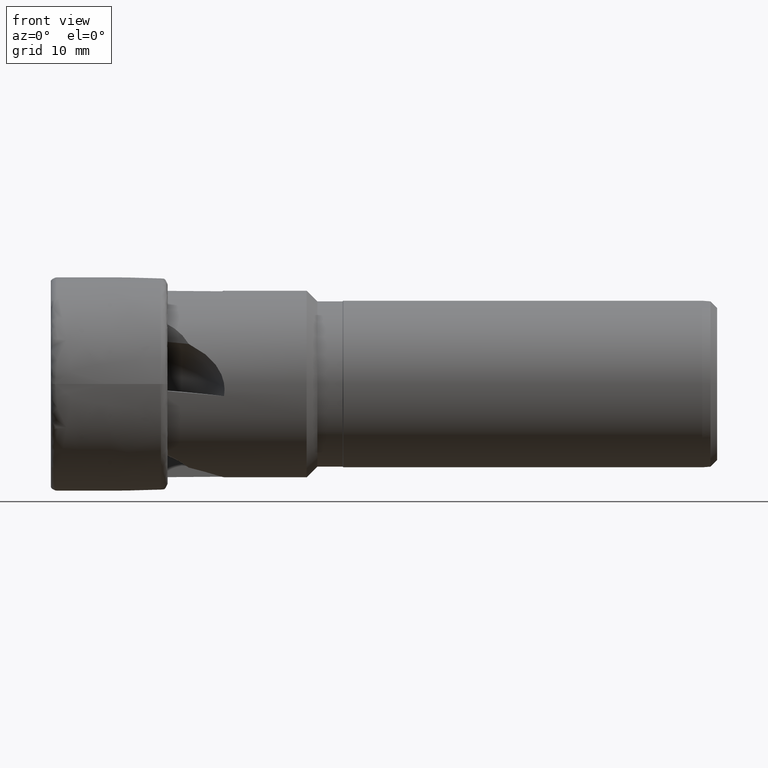
[diagram: clean part render]
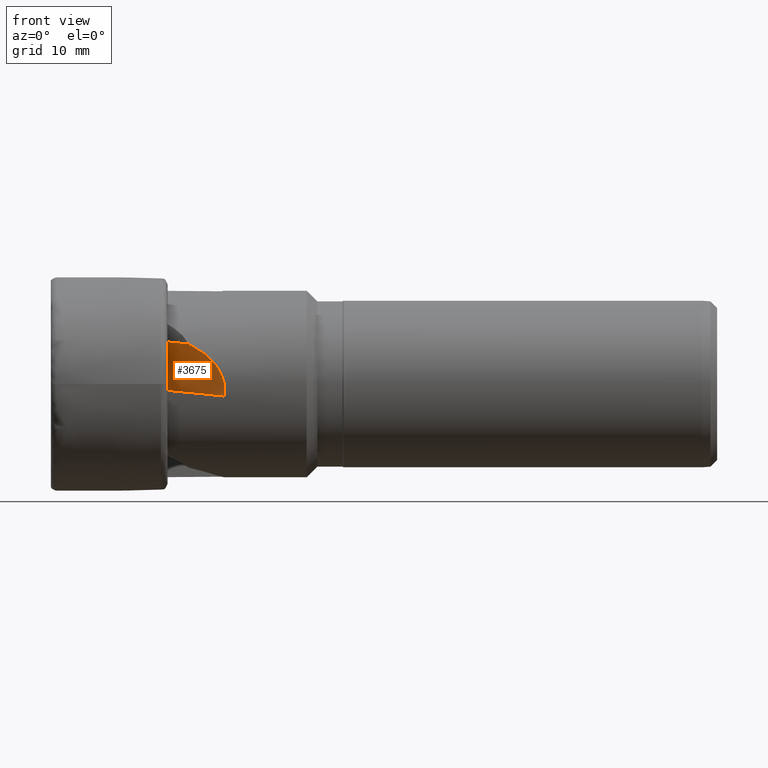
[diagram: same view with one face highlighted and labeled with its STEP entity id]
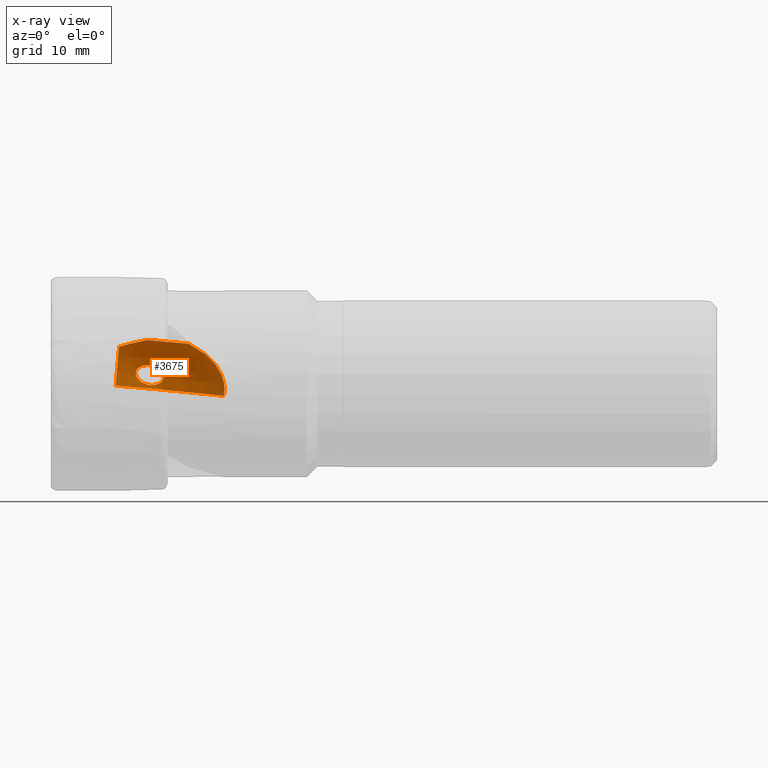
[diagram: x-ray of the same camera — body ghosted, the highlighted face saturated]
A machine part, front view. The second image highlights one B-rep face of the part: STEP entity #3675.
The next image is the same camera in x-ray: the body ghosted, the highlighted face saturated — about 0% of this face is hidden behind the body in this view.
In plain terms, the highlighted toroidal blend (fillet) surface has major radius 10.8 mm and minor (blend) radius 10 mm.
Its self-contained STEP definition (entity closure, byte-faithful):
#156 = TOROIDAL_SURFACE ( 'NONE', #4633, 10.80000000000000200, 10.00000000000000400 ) ;
#161 = FACE_OUTER_BOUND ( 'NONE', #4910, .T. ) ;
#165 = FACE_BOUND ( 'NONE', #3760, .T. ) ;
#428 = CIRCLE ( 'NONE', #4705, 10.00000000000000200 ) ;
#443 = CIRCLE ( 'NONE', #4706, 20.80000000000000800 ) ;
#445 = CIRCLE ( 'NONE', #4704, 17.63447144993671500 ) ;
#1300 = CARTESIAN_POINT ( 'NONE',  ( 15.95558540981332000, -7.513823000595686500, 1.451569785278157900 ) ) ;
#1302 = CARTESIAN_POINT ( 'NONE',  ( 15.90913261328060600, -7.524448618177044200, 1.565513061101820400 ) ) ;
#1307 = CARTESIAN_POINT ( 'NONE',  ( 15.98346500538578900, -7.497729160130214500, 1.334343345917489600 ) ) ;
#1309 = CARTESIAN_POINT ( 'NONE',  ( 15.79085530629273700, -7.535996749337995100, 1.776977983151252200 ) ) ;
#1310 = CARTESIAN_POINT ( 'NONE',  ( 15.71961153179854700, -7.537078339721431600, 1.874559453187051500 ) ) ;
#1311 = CARTESIAN_POINT ( 'NONE',  ( 15.47682405035740100, -7.529155750697180200, 2.147736637371622700 ) ) ;
#1312 = CARTESIAN_POINT ( 'NONE',  ( 15.28543699758397900, -7.509627240375477800, 2.295066600730197400 ) ) ;
#1313 = CARTESIAN_POINT ( 'NONE',  ( 14.86777305736455400, -7.451475128535750300, 2.537761412338202400 ) ) ;
#1314 = CARTESIAN_POINT ( 'NONE',  ( 14.64781012246563200, -7.413611299781115900, 2.628928130288764400 ) ) ;
#1315 = CARTESIAN_POINT ( 'NONE',  ( 14.19366610101976700, -7.323750772890364600, 2.760793710917047500 ) ) ;
#1316 = CARTESIAN_POINT ( 'NONE',  ( 13.95753541497681600, -7.271155847667728300, 2.801039579470110400 ) ) ;
#1317 = CARTESIAN_POINT ( 'NONE',  ( 13.49214067171819300, -7.155493035300130700, 2.825750430473343400 ) ) ;
#1318 = CARTESIAN_POINT ( 'NONE',  ( 13.25701190582090100, -7.091046316440194500, 2.810897808172989200 ) ) ;
#1319 = CARTESIAN_POINT ( 'NONE',  ( 12.91716189586692000, -6.986347020924033500, 2.738811625928793300 ) ) ;
#1320 = CARTESIAN_POINT ( 'NONE',  ( 12.80669913176889100, -6.950327479286558600, 2.706659186508060700 ) ) ;
#1321 = CARTESIAN_POINT ( 'NONE',  ( 12.59248801041963100, -6.875603299489645400, 2.623036889727314900 ) ) ;
#1322 = CARTESIAN_POINT ( 'NONE',  ( 12.48805689315371500, -6.836590978505123300, 2.571000725458746600 ) ) ;
#1323 = CARTESIAN_POINT ( 'NONE',  ( 12.20006795369850700, -6.719175105451293800, 2.384445354748276900 ) ) ;
#1324 = CARTESIAN_POINT ( 'NONE',  ( 12.03473532806740200, -6.637338316641757000, 2.214409076518687200 ) ) ;
#1325 = CARTESIAN_POINT ( 'NONE',  ( 11.89154193180556600, -6.527743565944389200, 1.894195813563708500 ) ) ;
#1326 = CARTESIAN_POINT ( 'NONE',  ( 11.86287938725716300, -6.494799390718349700, 1.780853035369087700 ) ) ;
#1327 = CARTESIAN_POINT ( 'NONE',  ( 11.84644627822182800, -6.437456463012629200, 1.542761687970975800 ) ) ;
#1328 = CARTESIAN_POINT ( 'NONE',  ( 11.85921110351061200, -6.414535878760384300, 1.423989063571814000 ) ) ;
#1329 = CARTESIAN_POINT ( 'NONE',  ( 11.88940927142923300, -6.397103613804150200, 1.308203520649771700 ) ) ;
#1386 = CARTESIAN_POINT ( 'NONE',  ( 11.88940927142923300, -6.397103613804150200, 1.308203520649771700 ) ) ;
#1387 = CARTESIAN_POINT ( 'NONE',  ( 11.91951465707688100, -6.379724908558397800, 1.192773722673828000 ) ) ;
#1392 = CARTESIAN_POINT ( 'NONE',  ( 11.96738034514691800, -6.367855001239560900, 1.080012527325800100 ) ) ;
#1393 = CARTESIAN_POINT ( 'NONE',  ( 12.08678269084986700, -6.354390348925934800, 0.8706884892175507100 ) ) ;
#1394 = CARTESIAN_POINT ( 'NONE',  ( 12.15951600653446900, -6.352605810766446500, 0.7717857230482181300 ) ) ;
#1395 = CARTESIAN_POINT ( 'NONE',  ( 12.39881278344110500, -6.359294119895078100, 0.5020776995111704300 ) ) ;
#1396 = CARTESIAN_POINT ( 'NONE',  ( 12.59159346698747800, -6.379630685425234500, 0.3510234746365900600 ) ) ;
#1397 = CARTESIAN_POINT ( 'NONE',  ( 13.00062116410745400, -6.440212296922116900, 0.1086139665369684800 ) ) ;
#1398 = CARTESIAN_POINT ( 'NONE',  ( 13.22050667562018100, -6.480900761194878800, 0.01472843107066962100 ) ) ;
#1399 = CARTESIAN_POINT ( 'NONE',  ( 13.67317258908157200, -6.577319382517397500, -0.1193864063803343200 ) ) ;
#1400 = CARTESIAN_POINT ( 'NONE',  ( 13.90302614043185000, -6.632307630887253500, -0.1593016072647000800 ) ) ;
#1401 = CARTESIAN_POINT ( 'NONE',  ( 14.37008823675442500, -6.755589794848880600, -0.1834984583408308100 ) ) ;
#1402 = CARTESIAN_POINT ( 'NONE',  ( 14.59997410100863700, -6.821976248866692800, -0.1672709321016372100 ) ) ;
#1403 = CARTESIAN_POINT ( 'NONE',  ( 15.04498429270990700, -6.963285678977793000, -0.07025045733255207100 ) ) ;
#1404 = CARTESIAN_POINT ( 'NONE',  ( 15.26466282047123000, -7.039842817584152500, 0.01254582983960233500 ) ) ;
#1405 = CARTESIAN_POINT ( 'NONE',  ( 15.55234593405946000, -7.155236811120080800, 0.1991514176870950400 ) ) ;
#1406 = CARTESIAN_POINT ( 'NONE',  ( 15.64268554576860000, -7.194428850626773700, 0.2729966580445224400 ) ) ;
#1407 = CARTESIAN_POINT ( 'NONE',  ( 15.79843658385230200, -7.269932761580991900, 0.4408797166002955100 ) ) ;
#1408 = CARTESIAN_POINT ( 'NONE',  ( 15.86574625475679800, -7.307200542634636700, 0.5371488140410445300 ) ) ;
#1409 = CARTESIAN_POINT ( 'NONE',  ( 15.96508953541149200, -7.375579287580266400, 0.7468252949288825000 ) ) ;
#1410 = CARTESIAN_POINT ( 'NONE',  ( 15.99756811498544100, -7.407120845837037700, 0.8617822185472611100 ) ) ;
#1411 = CARTESIAN_POINT ( 'NONE',  ( 16.02054036721192900, -7.460033880885343500, 1.096573775600150800 ) ) ;
#1412 = CARTESIAN_POINT ( 'NONE',  ( 16.01125894237810600, -7.481684767136896700, 1.217477078580926600 ) ) ;
#1413 = CARTESIAN_POINT ( 'NONE',  ( 15.98346500538578900, -7.497729160130214500, 1.334343345917489600 ) ) ;
#1878 = CARTESIAN_POINT ( 'NONE',  ( 12.94330843479180800, -9.398962272422812300, 6.464646237600639700 ) ) ;
#1879 = CARTESIAN_POINT ( 'NONE',  ( 13.62731220598950300, -9.783410505147127600, 6.598092078969931300 ) ) ;
#1891 = CARTESIAN_POINT ( 'NONE',  ( 12.24009413570415500, -9.066111735757964100, 6.322609388861969200 ) ) ;
#1892 = CARTESIAN_POINT ( 'NONE',  ( 10.81024475476340600, -8.482316226236781300, 5.994720712375642100 ) ) ;
#1893 = CARTESIAN_POINT ( 'NONE',  ( 10.08310654343110900, -8.232161918621960300, 5.809627812333698000 ) ) ;
#1894 = CARTESIAN_POINT ( 'NONE',  ( 9.346339155191319700, -8.022466884483062400, 5.594614703413067300 ) ) ;
#1895 = CARTESIAN_POINT ( 'NONE',  ( 9.468639033246974500, -26.92038299821425400, 6.662857291896300700 ) ) ;
#1896 = DIRECTION ( 'NONE',  ( -0.08715574274765848500, 0.01738599476176758500, -0.9960429728140487400 ) ) ;
#1897 = DIRECTION ( 'NONE',  ( -0.9961935453064441100, 0.0000000000000000000, 0.08716891814045806000 ) ) ;
#1899 = CARTESIAN_POINT ( 'NONE',  ( 8.832402111189066900, -15.99511012876432200, -0.4197704201235560300 ) ) ;
#1900 = DIRECTION ( 'NONE',  ( 0.9961946980917455500, 0.001521077445775765300, -0.08714246850588959500 ) ) ;
#1901 = DIRECTION ( 'NONE',  ( 0.08715574274765836000, -0.01738599476176771700, 0.9960429728140487400 ) ) ;
#1902 = CARTESIAN_POINT ( 'NONE',  ( 20.17664456306572900, -12.73164708209755200, 5.826283693382111800 ) ) ;
#1903 = CARTESIAN_POINT ( 'NONE',  ( 20.54443576101986200, -12.82007336689198100, 5.630217391787462100 ) ) ;
#1904 = CARTESIAN_POINT ( 'NONE',  ( 8.832402111189066900, -26.79346523645335100, -0.6082564096462578200 ) ) ;
#1905 = DIRECTION ( 'NONE',  ( -0.08715574274765848500, 0.01738599476176758500, -0.9960429728140487400 ) ) ;
#1906 = DIRECTION ( 'NONE',  ( -0.9961935453064439900, 0.0000000000000000000, 0.08716891814045803200 ) ) ;
#1907 = CARTESIAN_POINT ( 'NONE',  ( 19.80157853539143200, -12.64537183316224400, 6.007875764449646100 ) ) ;
#1908 = CARTESIAN_POINT ( 'NONE',  ( 21.26308566944011200, -12.99927192716541700, 5.203129671158328600 ) ) ;
#1909 = CARTESIAN_POINT ( 'NONE',  ( 21.61548314971762300, -13.09047395589636600, 4.970905618503610200 ) ) ;
#1910 = CARTESIAN_POINT ( 'NONE',  ( 22.28876591421828500, -13.26943783100308700, 4.471289602253013300 ) ) ;
#1911 = CARTESIAN_POINT ( 'NONE',  ( 22.61038177865677700, -13.35736075327374200, 4.203751515653555900 ) ) ;
#1912 = CARTESIAN_POINT ( 'NONE',  ( 23.21822919288790400, -13.52570578016628600, 3.625726995629090100 ) ) ;
#1913 = CARTESIAN_POINT ( 'NONE',  ( 23.50668390803799600, -13.60676303934643100, 3.312336800745604200 ) ) ;
#1914 = CARTESIAN_POINT ( 'NONE',  ( 24.02645569150223500, -13.75149854345343700, 2.647992314923847300 ) ) ;
#1915 = CARTESIAN_POINT ( 'NONE',  ( 24.25807039769250300, -13.81524710917439000, 2.297758551223789700 ) ) ;
#1916 = CARTESIAN_POINT ( 'NONE',  ( 24.55610530137905600, -13.89267118573277800, 1.740366078423877500 ) ) ;
#1917 = CARTESIAN_POINT ( 'NONE',  ( 24.64717919289962500, -13.91543091294955700, 1.549202333070685000 ) ) ;
#1918 = CARTESIAN_POINT ( 'NONE',  ( 24.81089743573588200, -13.95369404257578900, 1.154845413052668000 ) ) ;
#1919 = CARTESIAN_POINT ( 'NONE',  ( 24.88390009257676300, -13.96924633487468600, 0.9501780156041842500 ) ) ;
#1920 = CARTESIAN_POINT ( 'NONE',  ( 25.06710763338858400, -14.00217792123935300, 0.3312690220148646300 ) ) ;
#1921 = CARTESIAN_POINT ( 'NONE',  ( 25.14333688134616200, -14.00633220759949400, -0.08981913422055391700 ) ) ;
#1922 = CARTESIAN_POINT ( 'NONE',  ( 25.18299939675310400, -13.98233683792780200, -0.7352611082841774600 ) ) ;
#1923 = CARTESIAN_POINT ( 'NONE',  ( 25.18348884357216000, -13.96919737937100000, -0.9528263366295834900 ) ) ;
#1924 = CARTESIAN_POINT ( 'NONE',  ( 25.15892895005812900, -13.93329250463637900, -1.381923815499347000 ) ) ;
#1925 = CARTESIAN_POINT ( 'NONE',  ( 25.13401753410795400, -13.91049857769961100, -1.594807524555059000 ) ) ;
#1926 = CARTESIAN_POINT ( 'NONE',  ( 25.09664496296236500, -13.88301685378778500, -1.806057318427163500 ) ) ;
#3052 = CARTESIAN_POINT ( 'NONE',  ( 13.62731220598950300, -9.783410505147127600, 6.598092078969931300 ) ) ;
#3143 = CARTESIAN_POINT ( 'NONE',  ( 19.80157853539143200, -12.64537183316224400, 6.007875764449646100 ) ) ;
#3169 = CARTESIAN_POINT ( 'NONE',  ( 11.88940927142923300, -6.397103613804150200, 1.308203520649771700 ) ) ;
#3175 = CARTESIAN_POINT ( 'NONE',  ( 15.98346500538578900, -7.497729160130214500, 1.334343345917489600 ) ) ;
#3193 = CARTESIAN_POINT ( 'NONE',  ( 25.09664496296236500, -13.88301685378778500, -1.806057318427163500 ) ) ;
#3196 = CARTESIAN_POINT ( 'NONE',  ( 9.346339155191319700, -8.022466884483062400, 5.594614703413067300 ) ) ;
#3199 = CARTESIAN_POINT ( 'NONE',  ( 8.832402111189066900, -5.996633177200408200, -0.2452463557506876500 ) ) ;
#3324 = B_SPLINE_CURVE_WITH_KNOTS ( 'NONE', 3,
 ( #1307, #1300, #1302, #1309, #1310, #1311, #1312, #1313, #1314, #1315, #1316, #1317, #1318, #1319, #1320, #1321, #1322, #1323, #1324, #1325, #1326, #1327, #1328, #1329 ),
 .UNSPECIFIED., .F., .F.,
 ( 4, 2, 2, 2, 2, 2, 2, 2, 2, 2, 2, 4 ),
 ( 0.006073863372177914900, 0.006435127406834521500, 0.006796391441491128100, 0.007518919510804337800, 0.008241447580117546700, 0.008963975649430758200, 0.009686503718743967900, 0.01004776775340057000, 0.01040903178805717200, 0.01113155985737037900, 0.01149282389202697900, 0.01185408792668358200 ),
 .UNSPECIFIED. ) ;
#3348 = B_SPLINE_CURVE_WITH_KNOTS ( 'NONE', 3,
 ( #1386, #1387, #1392, #1393, #1394, #1395, #1396, #1397, #1398, #1399, #1400, #1401, #1402, #1403, #1404, #1405, #1406, #1407, #1408, #1409, #1410, #1411, #1412, #1413 ),
 .UNSPECIFIED., .F., .F.,
 ( 4, 2, 2, 2, 2, 2, 2, 2, 2, 2, 2, 4 ),
 ( 0.0003113982513690814800, 0.0006715523214196342500, 0.001031706391470187100, 0.001752014531571292300, 0.002472322671672397300, 0.003192630811773502300, 0.003912938951874608100, 0.004633247091975713600, 0.004993401162026264500, 0.005353555232076814700, 0.005713709302127364800, 0.006073863372177914900 ),
 .UNSPECIFIED. ) ;
#3675 = ADVANCED_FACE ( 'NONE', ( #161, #165 ), #156, .F. ) ;
#3760 = EDGE_LOOP ( 'NONE', ( #5659, #5630 ) ) ;
#4462 = EDGE_CURVE ( 'NONE', #5154, #5148, #3324, .T. ) ;
#4479 = EDGE_CURVE ( 'NONE', #5148, #5154, #3348, .T. ) ;
#4555 = EDGE_CURVE ( 'NONE', #5057, #5175, #5574, .T. ) ;
#4556 = EDGE_CURVE ( 'NONE', #5057, #5122, #445, .T. ) ;
#4557 = EDGE_CURVE ( 'NONE', #5178, #5175, #428, .T. ) ;
#4558 = EDGE_CURVE ( 'NONE', #5178, #5172, #443, .T. ) ;
#4559 = EDGE_CURVE ( 'NONE', #5122, #5172, #5578, .T. ) ;
#4633 = AXIS2_PLACEMENT_3D ( 'NONE', #5871, #5827, #5813 ) ;
#4704 = AXIS2_PLACEMENT_3D ( 'NONE', #1895, #1896, #1897 ) ;
#4705 = AXIS2_PLACEMENT_3D ( 'NONE', #1899, #1900, #1901 ) ;
#4706 = AXIS2_PLACEMENT_3D ( 'NONE', #1904, #1905, #1906 ) ;
#4910 = EDGE_LOOP ( 'NONE', ( #5623, #5617, #5627, #5656, #5667 ) ) ;
#5057 = VERTEX_POINT ( 'NONE', #3052 ) ;
#5122 = VERTEX_POINT ( 'NONE', #3143 ) ;
#5148 = VERTEX_POINT ( 'NONE', #3169 ) ;
#5154 = VERTEX_POINT ( 'NONE', #3175 ) ;
#5172 = VERTEX_POINT ( 'NONE', #3193 ) ;
#5175 = VERTEX_POINT ( 'NONE', #3196 ) ;
#5178 = VERTEX_POINT ( 'NONE', #3199 ) ;
#5574 = B_SPLINE_CURVE_WITH_KNOTS ( 'NONE', 3,
 ( #1879, #1878, #1891, #1892, #1893, #1894 ),
 .UNSPECIFIED., .F., .F.,
 ( 4, 2, 4 ),
 ( 9.711470536341281200E-015, 0.002368259885447132000, 0.004736519770884553000 ),
 .UNSPECIFIED. ) ;
#5578 = B_SPLINE_CURVE_WITH_KNOTS ( 'NONE', 3,
 ( #1907, #1902, #1903, #1908, #1909, #1910, #1911, #1912, #1913, #1914, #1915, #1916, #1917, #1918, #1919, #1920, #1921, #1922, #1923, #1924, #1925, #1926 ),
 .UNSPECIFIED., .F., .F.,
 ( 4, 2, 2, 2, 2, 2, 2, 2, 2, 2, 4 ),
 ( 0.002653844445880676000, 0.003930394890447063600, 0.005206945335013450300, 0.006483495779579838800, 0.007760046224146227200, 0.009036596668712614000, 0.009674871890995809900, 0.01031314711327900600, 0.01158969755784539100, 0.01222797278012858700, 0.01286624800241177900 ),
 .UNSPECIFIED. ) ;
#5617 = ORIENTED_EDGE ( 'NONE', *, *, #4555, .T. ) ;
#5623 = ORIENTED_EDGE ( 'NONE', *, *, #4556, .F. ) ;
#5627 = ORIENTED_EDGE ( 'NONE', *, *, #4557, .F. ) ;
#5630 = ORIENTED_EDGE ( 'NONE', *, *, #4479, .F. ) ;
#5656 = ORIENTED_EDGE ( 'NONE', *, *, #4558, .T. ) ;
#5659 = ORIENTED_EDGE ( 'NONE', *, *, #4462, .F. ) ;
#5667 = ORIENTED_EDGE ( 'NONE', *, *, #4559, .F. ) ;
#5813 = DIRECTION ( 'NONE',  ( -0.9961935453064441100, -3.624987171448078800E-019, 0.08716891814045804600 ) ) ;
#5827 = DIRECTION ( 'NONE',  ( -0.08715574274765848500, 0.01738599476176758500, -0.9960429728140487400 ) ) ;
#5871 = CARTESIAN_POINT ( 'NONE',  ( 8.832402111189066900, -26.79346523645335100, -0.6082564096462559400 ) ) ;